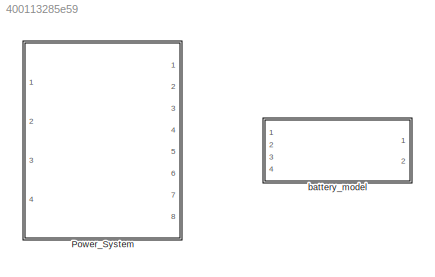
MODEL slx_400113285e59
KIND library
CONFIG AbsTol = auto
CONFIG EnableMultiTasking = off
CONFIG FixedStep = auto
CONFIG MaxStep = auto
CONFIG MinStep = auto
CONFIG RelTol = 1e-3
CONFIG SampleTimeConstraint = Unconstrained
CONFIG Solver = VariableStepAuto
CONFIG SolverName = VariableStepAuto
CONFIG StartTime = 0.0
CONFIG StopTime = 10.0
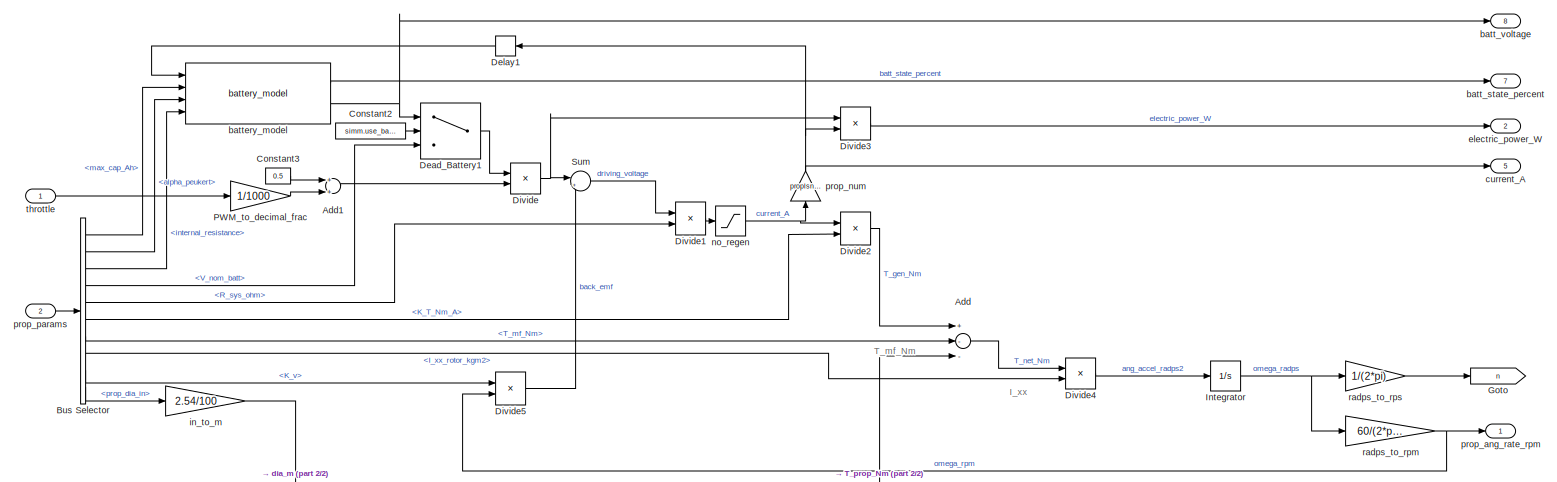
[diagram: Power_System - part 1/2, full width, top band]
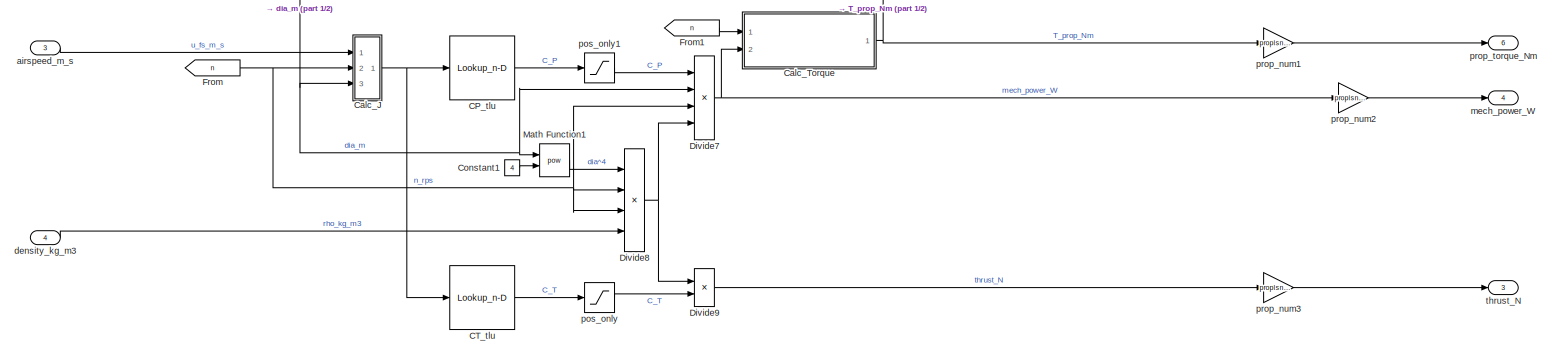
[diagram: Power_System - part 2/2, full width, bottom band]
BLOCK [SubSystem] Power_System
  Ports = [4, 8]
  RequestExecContextInheritance = off
BLOCK [Sum] Power_System/Add
  InputSameDT = off
  Inputs = +--
  OutDataTypeStr = Inherit: Inherit via internal rule
  Ports = [3, 1]
  SaturateOnIntegerOverflow = off
BLOCK [Sum] Power_System/Add1
  InputSameDT = off
  OutDataTypeStr = Inherit: Inherit via internal rule
  Ports = [2, 1]
  SaturateOnIntegerOverflow = off
BLOCK [BusSelector] Power_System/Bus Selector
  OutputAsBus = off
  OutputSignals = max_cap_Ah,alpha_peukert,internal_resistance,V_nom_batt,R_sys_ohm,K_T_Nm_A,T_mf_Nm,I_xx_rotor_kgm2,K_v,prop_dia_in
  Ports = [1, 10]
BLOCK [Lookup_n-D] Power_System/CP_tlu
  BreakpointsForDimension1 = proplsn.CP_bkpt
  InternalRulePriority = Speed
  NumberOfTableDimensions = 1
  Ports = [1, 1]
  RndMeth = Simplest
  Table = proplsn.CP_tlu
BLOCK [Lookup_n-D] Power_System/CT_tlu
  BreakpointsForDimension1 = proplsn.CT_bkpt
  InternalRulePriority = Speed
  NumberOfTableDimensions = 1
  Ports = [1, 1]
  RndMeth = Simplest
  Table = proplsn.CT_tlu
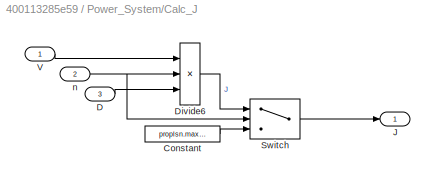
BLOCK [SubSystem] Power_System/Calc_J
  Ports = [3, 1]
  RequestExecContextInheritance = off
BLOCK [Constant] Power_System/Calc_J/Constant
  Value = proplsn.max_J
BLOCK [Inport] Power_System/Calc_J/D
  IconDisplay = Port number
  Port = 3
BLOCK [Product] Power_System/Calc_J/Divide6
  InputSameDT = off
  Inputs = *//
  OutDataTypeStr = Inherit: Inherit via internal rule
  Ports = [3, 1]
  RndMeth = Floor
  SaturateOnIntegerOverflow = off
BLOCK [Outport] Power_System/Calc_J/J
  IconDisplay = Port number
BLOCK [Switch] Power_System/Calc_J/Switch
  Criteria = u2 > Threshold
  InputSameDT = off
  SaturateOnIntegerOverflow = off
  Threshold = 0.1
BLOCK [Inport] Power_System/Calc_J/V
  IconDisplay = Port number
BLOCK [Inport] Power_System/Calc_J/n
  IconDisplay = Port number
  Port = 2
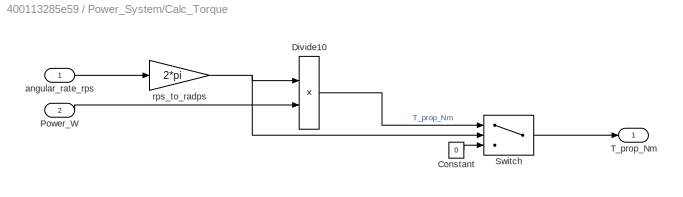
BLOCK [SubSystem] Power_System/Calc_Torque
  Ports = [2, 1]
  RequestExecContextInheritance = off
BLOCK [Constant] Power_System/Calc_Torque/Constant
  Value = 0
BLOCK [Product] Power_System/Calc_Torque/Divide10
  InputSameDT = off
  Inputs = /*
  OutDataTypeStr = Inherit: Inherit via internal rule
  Ports = [2, 1]
  RndMeth = Floor
  SaturateOnIntegerOverflow = off
BLOCK [Inport] Power_System/Calc_Torque/Power_W
  IconDisplay = Port number
  Port = 2
BLOCK [Switch] Power_System/Calc_Torque/Switch
  Criteria = u2 > Threshold
  InputSameDT = off
  SaturateOnIntegerOverflow = off
  Threshold = 0.1
BLOCK [Outport] Power_System/Calc_Torque/T_prop_Nm
  IconDisplay = Port number
BLOCK [Inport] Power_System/Calc_Torque/angular_rate_rps
  IconDisplay = Port number
BLOCK [Gain] Power_System/Calc_Torque/rps_to_radps
  Gain = 2*pi
  OutDataTypeStr = Inherit: Inherit via internal rule
  ParamDataTypeStr = Inherit: Inherit via internal rule
  SaturateOnIntegerOverflow = off
BLOCK [Constant] Power_System/Constant1
  Value = 4
BLOCK [Constant] Power_System/Constant2
  OutDataTypeStr = boolean
  Value = simm.use_batt
BLOCK [Constant] Power_System/Constant3
  Value = 0.5
BLOCK [Switch] Power_System/Dead_Battery1
  Criteria = u2 > Threshold
  InputSameDT = off
  SaturateOnIntegerOverflow = off
BLOCK [Delay] Power_System/Delay1
  DelayLength = 1
  InputPortMap = u0
  Ports = [1, 1]
BLOCK [Product] Power_System/Divide
  InputSameDT = off
  Inputs = **
  OutDataTypeStr = Inherit: Inherit via internal rule
  Ports = [2, 1]
  RndMeth = Floor
  SaturateOnIntegerOverflow = off
BLOCK [Product] Power_System/Divide1
  InputSameDT = off
  Inputs = */
  OutDataTypeStr = Inherit: Inherit via internal rule
  Ports = [2, 1]
  RndMeth = Floor
  SaturateOnIntegerOverflow = off
BLOCK [Product] Power_System/Divide2
  InputSameDT = off
  Inputs = **
  OutDataTypeStr = Inherit: Inherit via internal rule
  Ports = [2, 1]
  RndMeth = Floor
  SaturateOnIntegerOverflow = off
BLOCK [Product] Power_System/Divide3
  InputSameDT = off
  Inputs = **
  OutDataTypeStr = Inherit: Inherit via internal rule
  Ports = [2, 1]
  RndMeth = Floor
  SaturateOnIntegerOverflow = off
BLOCK [Product] Power_System/Divide4
  InputSameDT = off
  Inputs = */
  OutDataTypeStr = Inherit: Inherit via internal rule
  Ports = [2, 1]
  RndMeth = Floor
  SaturateOnIntegerOverflow = off
BLOCK [Product] Power_System/Divide5
  InputSameDT = off
  Inputs = /*
  OutDataTypeStr = Inherit: Inherit via internal rule
  Ports = [2, 1]
  RndMeth = Floor
  SaturateOnIntegerOverflow = off
BLOCK [Product] Power_System/Divide7
  InputSameDT = off
  Inputs = ****
  OutDataTypeStr = Inherit: Inherit via internal rule
  Ports = [4, 1]
  RndMeth = Floor
  SaturateOnIntegerOverflow = off
BLOCK [Product] Power_System/Divide8
  InputSameDT = off
  Inputs = ****
  OutDataTypeStr = Inherit: Inherit via internal rule
  Ports = [4, 1]
  RndMeth = Floor
  SaturateOnIntegerOverflow = off
BLOCK [Product] Power_System/Divide9
  InputSameDT = off
  Inputs = **
  OutDataTypeStr = Inherit: Inherit via internal rule
  Ports = [2, 1]
  RndMeth = Floor
  SaturateOnIntegerOverflow = off
BLOCK [From] Power_System/From
  GotoTag = n
BLOCK [From] Power_System/From1
  GotoTag = n
BLOCK [Goto] Power_System/Goto
  GotoTag = n
BLOCK [Integrator] Power_System/Integrator
  InitialCondition = simm.init_omega_radps
  LimitOutput = on
  LowerSaturationLimit = 0
  Ports = [1, 1]
BLOCK [Math] Power_System/Math Function1
  Operator = pow
  Ports = [2, 1]
BLOCK [Gain] Power_System/PWM_to_decimal_frac
  Gain = 1/1000
  OutDataTypeStr = Inherit: Inherit via internal rule
  ParamDataTypeStr = Inherit: Inherit via internal rule
  SaturateOnIntegerOverflow = off
BLOCK [Sum] Power_System/Sum
  IconShape = round
  InputSameDT = off
  Inputs = |+-
  OutDataTypeStr = Inherit: Inherit via internal rule
  Ports = [2, 1]
  SaturateOnIntegerOverflow = off
BLOCK [Inport] Power_System/airspeed_m_s
  IconDisplay = Port number
  Port = 3
BLOCK [Outport] Power_System/batt_state_percent
  IconDisplay = Port number
  Port = 7
BLOCK [Outport] Power_System/batt_voltage
  IconDisplay = Port number
  Port = 8
BLOCK [Reference] Power_System/battery_model  REF=$bdroot/battery_model
  Ports = [4, 2]
  SourceBlock = $bdroot/battery_model
  SourceType = SubSystem
BLOCK [Outport] Power_System/current_A
  IconDisplay = Port number
  Port = 5
BLOCK [Inport] Power_System/density_kg_m3
  IconDisplay = Port number
  Port = 4
BLOCK [Outport] Power_System/electric_power_W
  IconDisplay = Port number
  Port = 2
BLOCK [Gain] Power_System/in_to_m
  Gain = 2.54/100
  OutDataTypeStr = Inherit: Inherit via internal rule
  ParamDataTypeStr = Inherit: Inherit via internal rule
  SaturateOnIntegerOverflow = off
BLOCK [Outport] Power_System/mech_power_W
  IconDisplay = Port number
  Port = 4
BLOCK [Saturate] Power_System/no_regen
  InputPortMap = u0
  LowerLimit = 0
  Ports = [1, 1]
  UpperLimit = inf
BLOCK [Saturate] Power_System/pos_only
  InputPortMap = u0
  LowerLimit = 0
  Ports = [1, 1]
  UpperLimit = inf
BLOCK [Saturate] Power_System/pos_only1
  InputPortMap = u0
  LowerLimit = 0
  Ports = [1, 1]
  UpperLimit = inf
BLOCK [Outport] Power_System/prop_ang_rate_rpm
  IconDisplay = Port number
BLOCK [Gain] Power_System/prop_num
  Gain = proplsn.num_props
  OutDataTypeStr = Inherit: Inherit via internal rule
  ParamDataTypeStr = Inherit: Inherit via internal rule
  SaturateOnIntegerOverflow = off
BLOCK [Gain] Power_System/prop_num1
  Gain = proplsn.num_props
  OutDataTypeStr = Inherit: Inherit via internal rule
  ParamDataTypeStr = Inherit: Inherit via internal rule
  SaturateOnIntegerOverflow = off
BLOCK [Gain] Power_System/prop_num2
  Gain = proplsn.num_props
  OutDataTypeStr = Inherit: Inherit via internal rule
  ParamDataTypeStr = Inherit: Inherit via internal rule
  SaturateOnIntegerOverflow = off
BLOCK [Gain] Power_System/prop_num3
  Gain = proplsn.num_props
  OutDataTypeStr = Inherit: Inherit via internal rule
  ParamDataTypeStr = Inherit: Inherit via internal rule
  SaturateOnIntegerOverflow = off
BLOCK [Inport] Power_System/prop_params
  IconDisplay = Port number
  Port = 2
BLOCK [Outport] Power_System/prop_torque_Nm
  IconDisplay = Port number
  Port = 6
BLOCK [Gain] Power_System/radps_to_rpm
  Gain = 60/(2*pi)
  OutDataTypeStr = Inherit: Inherit via internal rule
  ParamDataTypeStr = Inherit: Inherit via internal rule
  SaturateOnIntegerOverflow = off
BLOCK [Gain] Power_System/radps_to_rps
  Gain = 1/(2*pi)
  OutDataTypeStr = Inherit: Inherit via internal rule
  ParamDataTypeStr = Inherit: Inherit via internal rule
  SaturateOnIntegerOverflow = off
BLOCK [Inport] Power_System/throttle
  IconDisplay = Port number
BLOCK [Outport] Power_System/thrust_N
  IconDisplay = Port number
  Port = 3
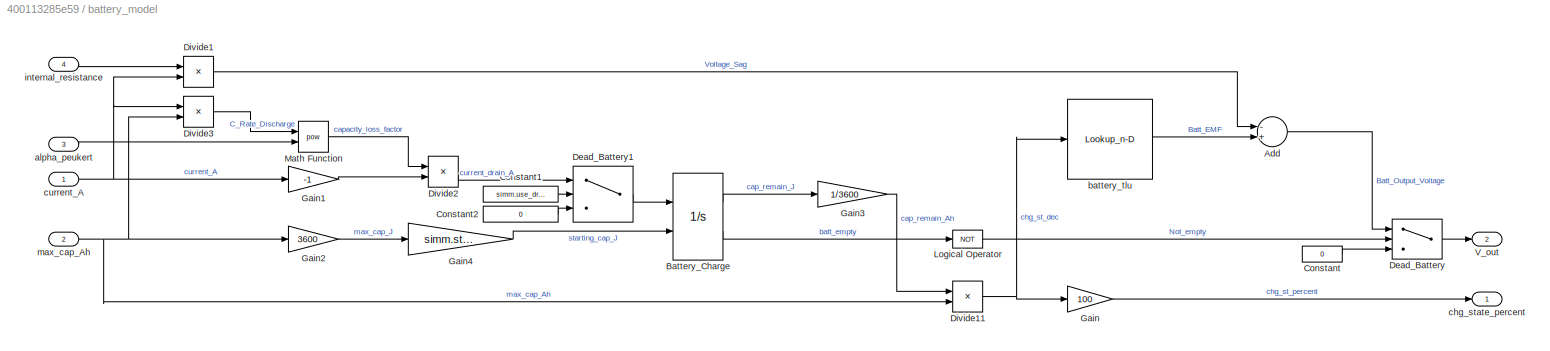
BLOCK [SubSystem] battery_model
  Ports = [4, 2]
  RequestExecContextInheritance = off
BLOCK [Sum] battery_model/Add
  InputSameDT = off
  Inputs = -+
  OutDataTypeStr = Inherit: Inherit via internal rule
  Ports = [2, 1]
  SaturateOnIntegerOverflow = off
BLOCK [Integrator] battery_model/Battery_Charge
  ContinuousStateAttributes = 'cap_remaining'
  InitialConditionSource = external
  LimitOutput = on
  LowerSaturationLimit = 0
  Ports = [2, 2]
  ShowSaturationPort = on
BLOCK [Constant] battery_model/Constant
  Value = 0
BLOCK [Constant] battery_model/Constant1
  OutDataTypeStr = boolean
  Value = simm.use_drain
BLOCK [Constant] battery_model/Constant2
  Value = 0
BLOCK [Switch] battery_model/Dead_Battery
  Criteria = u2 > Threshold
  InputSameDT = off
  SaturateOnIntegerOverflow = off
BLOCK [Switch] battery_model/Dead_Battery1
  Criteria = u2 > Threshold
  InputSameDT = off
  SaturateOnIntegerOverflow = off
BLOCK [Product] battery_model/Divide1
  InputSameDT = off
  Inputs = **
  OutDataTypeStr = Inherit: Inherit via internal rule
  Ports = [2, 1]
  RndMeth = Floor
  SaturateOnIntegerOverflow = off
BLOCK [Product] battery_model/Divide11
  InputSameDT = off
  Inputs = */
  OutDataTypeStr = Inherit: Inherit via internal rule
  Ports = [2, 1]
  RndMeth = Floor
  SaturateOnIntegerOverflow = off
BLOCK [Product] battery_model/Divide2
  InputSameDT = off
  Inputs = **
  OutDataTypeStr = Inherit: Inherit via internal rule
  Ports = [2, 1]
  RndMeth = Floor
  SaturateOnIntegerOverflow = off
BLOCK [Product] battery_model/Divide3
  InputSameDT = off
  Inputs = */
  OutDataTypeStr = Inherit: Inherit via internal rule
  Ports = [2, 1]
  RndMeth = Floor
  SaturateOnIntegerOverflow = off
BLOCK [Gain] battery_model/Gain
  Gain = 100
  OutDataTypeStr = Inherit: Inherit via internal rule
  ParamDataTypeStr = Inherit: Inherit via internal rule
  SaturateOnIntegerOverflow = off
BLOCK [Gain] battery_model/Gain1
  Gain = -1
  OutDataTypeStr = Inherit: Inherit via internal rule
  ParamDataTypeStr = Inherit: Inherit via internal rule
  SaturateOnIntegerOverflow = off
BLOCK [Gain] battery_model/Gain2
  Gain = 3600
  OutDataTypeStr = Inherit: Inherit via internal rule
  ParamDataTypeStr = Inherit: Inherit via internal rule
  SaturateOnIntegerOverflow = off
BLOCK [Gain] battery_model/Gain3
  Gain = 1/3600
  OutDataTypeStr = Inherit: Inherit via internal rule
  ParamDataTypeStr = Inherit: Inherit via internal rule
  SaturateOnIntegerOverflow = off
BLOCK [Gain] battery_model/Gain4
  Gain = simm.start_dec
  OutDataTypeStr = Inherit: Inherit via internal rule
  ParamDataTypeStr = Inherit: Inherit via internal rule
  SaturateOnIntegerOverflow = off
BLOCK [Logic] battery_model/Logical Operator
  AllPortsSameDT = off
  Operator = NOT
  OutDataTypeStr = boolean
  Ports = [1, 1]
BLOCK [Math] battery_model/Math Function
  Operator = pow
  Ports = [2, 1]
BLOCK [Outport] battery_model/V_out
  IconDisplay = Port number
  Port = 2
BLOCK [Inport] battery_model/alpha_peukert
  IconDisplay = Port number
  Port = 3
BLOCK [Lookup_n-D] battery_model/battery_tlu
  BreakpointsForDimension1 = proplsn.battery_bkpt_chg_st_dec
  BreakpointsForDimension2 = battery_bkpt_chg_st_dec
  ExtrapMethod = Clip
  InternalRulePriority = Speed
  NumberOfTableDimensions = 1
  Ports = [1, 1]
  RndMeth = Simplest
  Table = proplsn.battery_tlu
BLOCK [Outport] battery_model/chg_state_percent
  IconDisplay = Port number
BLOCK [Inport] battery_model/current_A
  IconDisplay = Port number
BLOCK [Inport] battery_model/internal_resistance
  IconDisplay = Port number
  Port = 4
BLOCK [Inport] battery_model/max_cap_Ah
  IconDisplay = Port number
  Port = 2
ANNOTATION Power_System: I_xx
ANNOTATION Power_System: T_mf_Nm
LINE Power_System/Add1:1 -> Power_System/Divide:2
LINE Power_System/Add:1 -> Power_System/Divide4:1
LINE Power_System/Bus Selector:1 -> Power_System/battery_model:2
LINE Power_System/Bus Selector:10 -> Power_System/in_to_m:1
LINE Power_System/Bus Selector:2 -> Power_System/battery_model:3
LINE Power_System/Bus Selector:3 -> Power_System/battery_model:4
LINE Power_System/Bus Selector:4 -> Power_System/Dead_Battery1:3
LINE Power_System/Bus Selector:5 -> Power_System/Divide1:2
LINE Power_System/Bus Selector:6 -> Power_System/Divide2:2
LINE Power_System/Bus Selector:7 -> Power_System/Add:2
LINE Power_System/Bus Selector:8 -> Power_System/Divide4:2
LINE Power_System/Bus Selector:9 -> Power_System/Divide5:1
LINE Power_System/CP_tlu:1 -> Power_System/pos_only1:1
LINE Power_System/CT_tlu:1 -> Power_System/pos_only:1
LINE Power_System/Calc_J/Constant:1 -> Power_System/Calc_J/Switch:3
LINE Power_System/Calc_J/D:1 -> Power_System/Calc_J/Divide6:3
LINE Power_System/Calc_J/Divide6:1 -> Power_System/Calc_J/Switch:1
LINE Power_System/Calc_J/Switch:1 -> Power_System/Calc_J/J:1
LINE Power_System/Calc_J/V:1 -> Power_System/Calc_J/Divide6:1
NET Power_System/Calc_J/n:1 -> Power_System/Calc_J/Divide6:2, Power_System/Calc_J/Switch:2
NET Power_System/Calc_J:1 -> Power_System/CP_tlu:1, Power_System/CT_tlu:1
LINE Power_System/Calc_Torque/Constant:1 -> Power_System/Calc_Torque/Switch:3
LINE Power_System/Calc_Torque/Divide10:1 -> Power_System/Calc_Torque/Switch:1
LINE Power_System/Calc_Torque/Power_W:1 -> Power_System/Calc_Torque/Divide10:2
LINE Power_System/Calc_Torque/Switch:1 -> Power_System/Calc_Torque/T_prop_Nm:1
LINE Power_System/Calc_Torque/angular_rate_rps:1 -> Power_System/Calc_Torque/rps_to_radps:1
NET Power_System/Calc_Torque/rps_to_radps:1 -> Power_System/Calc_Torque/Divide10:1, Power_System/Calc_Torque/Switch:2
NET Power_System/Calc_Torque:1 -> Power_System/Add:3, Power_System/prop_num1:1
LINE Power_System/Constant1:1 -> Power_System/Math Function1:2
LINE Power_System/Constant2:1 -> Power_System/Dead_Battery1:2
LINE Power_System/Constant3:1 -> Power_System/Add1:1
LINE Power_System/Dead_Battery1:1 -> Power_System/Divide:1
LINE Power_System/Delay1:1 -> Power_System/battery_model:1
LINE Power_System/Divide1:1 -> Power_System/no_regen:1
LINE Power_System/Divide2:1 -> Power_System/Add:1
LINE Power_System/Divide3:1 -> Power_System/electric_power_W:1
LINE Power_System/Divide4:1 -> Power_System/Integrator:1
LINE Power_System/Divide5:1 -> Power_System/Sum:2
NET Power_System/Divide7:1 -> Power_System/Calc_Torque:2, Power_System/prop_num2:1
NET Power_System/Divide8:1 -> Power_System/Divide7:4, Power_System/Divide9:1
LINE Power_System/Divide9:1 -> Power_System/prop_num3:1
NET Power_System/Divide:1 -> Power_System/Divide3:1, Power_System/Sum:1
LINE Power_System/From1:1 -> Power_System/Calc_Torque:1
NET Power_System/From:1 -> Power_System/Calc_J:2, Power_System/Divide7:3, Power_System/Divide8:2, Power_System/Divide8:3
NET Power_System/Integrator:1 -> Power_System/radps_to_rpm:1, Power_System/radps_to_rps:1
LINE Power_System/Math Function1:1 -> Power_System/Divide8:1
LINE Power_System/PWM_to_decimal_frac:1 -> Power_System/Add1:2
LINE Power_System/Sum:1 -> Power_System/Divide1:1
LINE Power_System/airspeed_m_s:1 -> Power_System/Calc_J:1
LINE Power_System/battery_model:1 -> Power_System/batt_state_percent:1
NET Power_System/battery_model:2 -> Power_System/Dead_Battery1:1, Power_System/batt_voltage:1
LINE Power_System/density_kg_m3:1 -> Power_System/Divide8:4
NET Power_System/in_to_m:1 -> Power_System/Calc_J:3, Power_System/Divide7:2, Power_System/Math Function1:1
NET Power_System/no_regen:1 -> Power_System/Divide2:1, Power_System/prop_num:1
LINE Power_System/pos_only1:1 -> Power_System/Divide7:1
LINE Power_System/pos_only:1 -> Power_System/Divide9:2
LINE Power_System/prop_num1:1 -> Power_System/prop_torque_Nm:1
LINE Power_System/prop_num2:1 -> Power_System/mech_power_W:1
LINE Power_System/prop_num3:1 -> Power_System/thrust_N:1
NET Power_System/prop_num:1 -> Power_System/Delay1:1, Power_System/Divide3:2, Power_System/current_A:1
LINE Power_System/prop_params:1 -> Power_System/Bus Selector:1
NET Power_System/radps_to_rpm:1 -> Power_System/Divide5:2, Power_System/prop_ang_rate_rpm:1
LINE Power_System/radps_to_rps:1 -> Power_System/Goto:1
LINE Power_System/throttle:1 -> Power_System/PWM_to_decimal_frac:1
LINE battery_model/Add:1 -> battery_model/Dead_Battery:1
LINE battery_model/Battery_Charge:1 -> battery_model/Gain3:1
LINE battery_model/Battery_Charge:2 -> battery_model/Logical Operator:1
LINE battery_model/Constant1:1 -> battery_model/Dead_Battery1:2
LINE battery_model/Constant2:1 -> battery_model/Dead_Battery1:3
LINE battery_model/Constant:1 -> battery_model/Dead_Battery:3
LINE battery_model/Dead_Battery1:1 -> battery_model/Battery_Charge:1
LINE battery_model/Dead_Battery:1 -> battery_model/V_out:1
NET battery_model/Divide11:1 -> battery_model/Gain:1, battery_model/battery_tlu:1
LINE battery_model/Divide1:1 -> battery_model/Add:1
LINE battery_model/Divide2:1 -> battery_model/Dead_Battery1:1
LINE battery_model/Divide3:1 -> battery_model/Math Function:1
LINE battery_model/Gain1:1 -> battery_model/Divide2:2
LINE battery_model/Gain2:1 -> battery_model/Gain4:1
LINE battery_model/Gain3:1 -> battery_model/Divide11:1
LINE battery_model/Gain4:1 -> battery_model/Battery_Charge:2
LINE battery_model/Gain:1 -> battery_model/chg_state_percent:1
LINE battery_model/Logical Operator:1 -> battery_model/Dead_Battery:2
LINE battery_model/Math Function:1 -> battery_model/Divide2:1
LINE battery_model/alpha_peukert:1 -> battery_model/Math Function:2
LINE battery_model/battery_tlu:1 -> battery_model/Add:2
NET battery_model/current_A:1 -> battery_model/Divide1:2, battery_model/Divide3:1, battery_model/Gain1:1
LINE battery_model/internal_resistance:1 -> battery_model/Divide1:1
NET battery_model/max_cap_Ah:1 -> battery_model/Divide11:2, battery_model/Divide3:2, battery_model/Gain2:1
note: NET lines group one-source signal fan-out (src -> all destinations, sorted); 1:1 wires keep LINE
